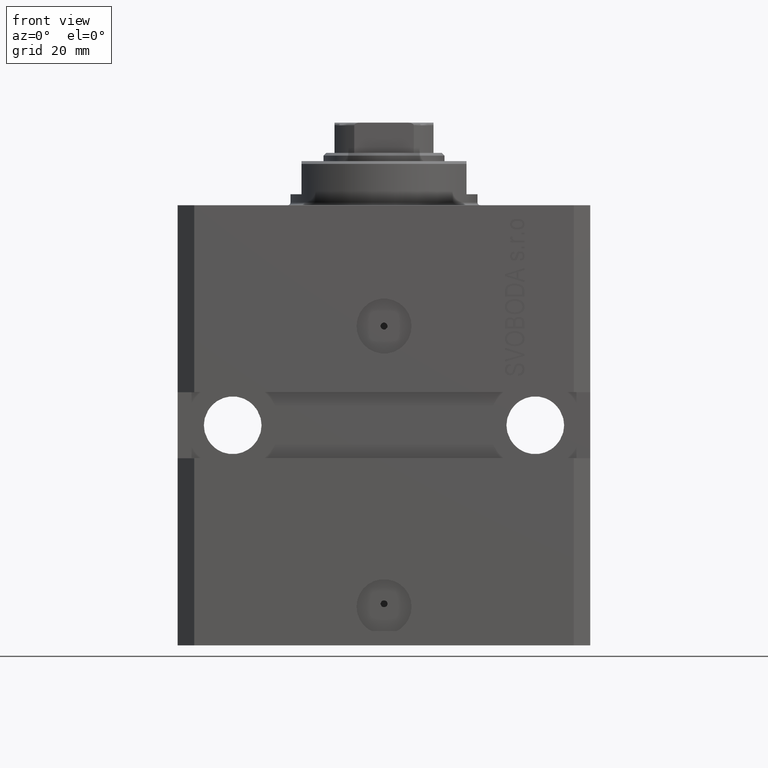
[diagram: clean part render]
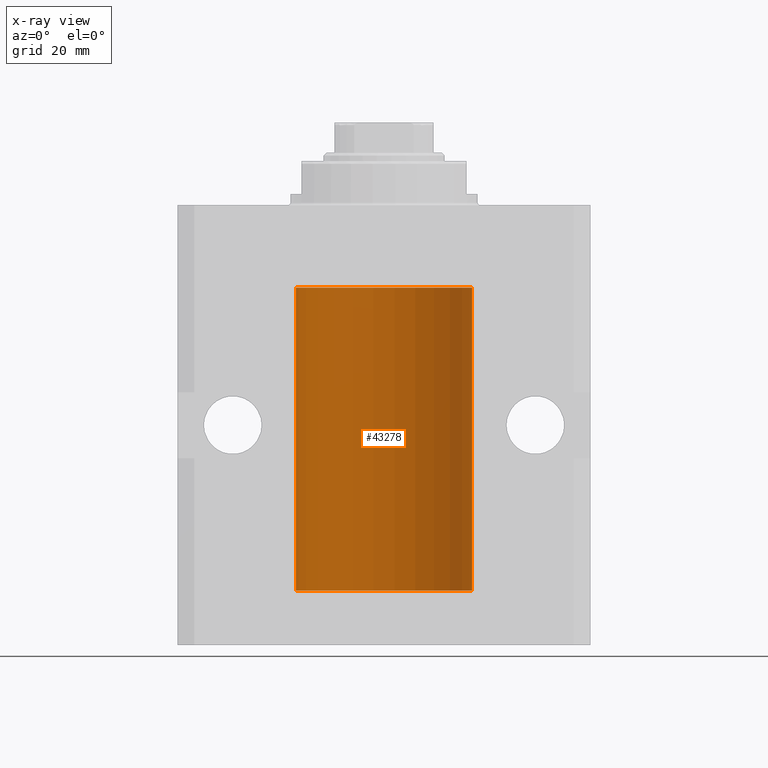
[diagram: x-ray — body ghosted, one internal face saturated and labeled with its STEP entity id]
A machine part, front view, then the same camera in x-ray: the body is ghosted and one INTERNAL B-rep face — a face not visible from any outside direction — is saturated and labeled: STEP entity #43278.
In plain terms, the highlighted cylindrical surface (partial cylindrical patch) has radius 16 mm, axis along (0, 0, 1).
Its self-contained STEP definition (entity closure, byte-faithful):
#1020 = LINE ( 'NONE', #12054, #4899 ) ;
#1330 = CARTESIAN_POINT ( 'NONE',  ( -15.99548640841682712, 0.3843705577988820732, -67.50046628527007897 ) ) ;
#1781 = CARTESIAN_POINT ( 'NONE',  ( -16.00000000000000000, -9.346608026143465119E-15, -67.37500000000000000 ) ) ;
#1784 = VERTEX_POINT ( 'NONE', #25628 ) ;
#2298 = CARTESIAN_POINT ( 'NONE',  ( -16.00000000000000000, 1.643679961284177128E-16, -21.37499999999999645 ) ) ;
#2347 = ORIENTED_EDGE ( 'NONE', *, *, #42246, .T. ) ;
#2467 = CARTESIAN_POINT ( 'NONE',  ( -16.00000000000000000, 1.643679961284177128E-16, -21.37499999999999645 ) ) ;
#2696 = CARTESIAN_POINT ( 'NONE',  ( -15.99934216141748244, 0.1636497843296417787, -21.39126528029306229 ) ) ;
#3070 = CARTESIAN_POINT ( 'NONE',  ( 16.00000000000000000, 0.000000000000000000, -70.09999999999999432 ) ) ;
#3541 = CARTESIAN_POINT ( 'NONE',  ( 15.98778830858070954, 0.6250000000080517815, -67.99999999999916156 ) ) ;
#4091 = CARTESIAN_POINT ( 'NONE',  ( 16.00000000000013145, 3.665532684555111376E-13, -21.37499999999658229 ) ) ;
#4154 = VERTEX_POINT ( 'NONE', #39812 ) ;
#4175 = CARTESIAN_POINT ( 'NONE',  ( 15.99070366873610993, 0.5574063959866685236, -22.32639436837549951 ) ) ;
#4899 = VECTOR ( 'NONE', #35522, 1000.000000000000000 ) ;
#4974 = CARTESIAN_POINT ( 'NONE',  ( 15.99711856062700122, 0.3252985083513915687, -21.44140297987714661 ) ) ;
#5024 = VECTOR ( 'NONE', #30632, 1000.000000000000000 ) ;
#5129 = EDGE_CURVE ( 'NONE', #38978, #9726, #7250, .T. ) ;
#5149 = CARTESIAN_POINT ( 'NONE',  ( -15.98778717651346426, 0.6250289588122136530, -68.08131585687053189 ) ) ;
#5179 = VERTEX_POINT ( 'NONE', #6062 ) ;
#5327 = DIRECTION ( 'NONE',  ( -0.000000000000000000, -0.000000000000000000, 1.000000000000000000 ) ) ;
#5426 = CARTESIAN_POINT ( 'NONE',  ( 16.00000000000013145, 3.665532684555111376E-13, -21.37499999999658229 ) ) ;
#5752 = EDGE_CURVE ( 'NONE', #36478, #12424, #25349, .T. ) ;
#5925 = CARTESIAN_POINT ( 'NONE',  ( 16.00000000000000000, 0.000000000000000000, -15.00000000000000000 ) ) ;
#6062 = CARTESIAN_POINT ( 'NONE',  ( -16.00000000000000000, -9.346608026143465119E-15, -67.37500000000000000 ) ) ;
#6180 = CARTESIAN_POINT ( 'NONE',  ( 0.000000000000000000, 0.000000000000000000, -70.09999999999999432 ) ) ;
#6550 = CARTESIAN_POINT ( 'NONE',  ( 16.00000000000000000, 0.000000000000000000, -70.09999999999999432 ) ) ;
#6927 = CARTESIAN_POINT ( 'NONE',  ( 15.99707608081895138, 0.3151028052310259620, -68.54594170697733091 ) ) ;
#7059 = VERTEX_POINT ( 'NONE', #2298 ) ;
#7250 = B_SPLINE_CURVE_WITH_KNOTS ( 'NONE', 3,
 ( #26583, #22969, #33569, #6927, #16861, #17083, #40358, #3541 ),
 .UNSPECIFIED., .F., .F.,
 ( 4, 2, 2, 4 ),
 ( 1.783888443149829469E-18, 0.0002443331572175257886, 0.0004886663144350497342, 0.0009773326288700682433 ),
 .UNSPECIFIED. ) ;
#7352 = ORIENTED_EDGE ( 'NONE', *, *, #5752, .F. ) ;
#7371 = LINE ( 'NONE', #27674, #24089 ) ;
#7872 = EDGE_CURVE ( 'NONE', #40528, #4154, #23378, .T. ) ;
#7887 = VECTOR ( 'NONE', #20307, 1000.000000000000000 ) ;
#8591 = AXIS2_PLACEMENT_3D ( 'NONE', #6180, #19937, #17411 ) ;
#8879 = CARTESIAN_POINT ( 'NONE',  ( -16.00000000000000000, 1.959434878635765131E-15, -70.09999999999999432 ) ) ;
#9233 = CARTESIAN_POINT ( 'NONE',  ( -16.00000000000013145, 3.685127034031037939E-13, -22.62500000000341771 ) ) ;
#9505 = EDGE_CURVE ( 'NONE', #18520, #10003, #10388, .T. ) ;
#9630 = VECTOR ( 'NONE', #12045, 1000.000000000000000 ) ;
#9726 = VERTEX_POINT ( 'NONE', #11685 ) ;
#10003 = VERTEX_POINT ( 'NONE', #4091 ) ;
#10388 = B_SPLINE_CURVE_WITH_KNOTS ( 'NONE', 3,
 ( #15572, #22123, #39281, #12178, #25724, #4974, #18733, #5426 ),
 .UNSPECIFIED., .F., .F.,
 ( 4, 2, 2, 4 ),
 ( 0.0009773326288699728335, 0.001221554802188567438, 0.001465776975507162259, 0.001954221322144344530 ),
 .UNSPECIFIED. ) ;
#10536 = LINE ( 'NONE', #34231, #5024 ) ;
#10950 = ORIENTED_EDGE ( 'NONE', *, *, #30734, .T. ) ;
#11426 = EDGE_CURVE ( 'NONE', #7059, #4154, #29461, .T. ) ;
#11685 = CARTESIAN_POINT ( 'NONE',  ( 15.98778830858070954, 0.6250000000080517815, -67.99999999999916156 ) ) ;
#12045 = DIRECTION ( 'NONE',  ( -0.000000000000000000, -0.000000000000000000, 1.000000000000000000 ) ) ;
#12054 = CARTESIAN_POINT ( 'NONE',  ( -16.00000000000000000, 1.959434878635765131E-15, -70.09999999999999432 ) ) ;
#12130 = CARTESIAN_POINT ( 'NONE',  ( -15.99711699979840951, 0.3253759916140645525, -68.55856151623176231 ) ) ;
#12178 = CARTESIAN_POINT ( 'NONE',  ( 15.99070695999104252, 0.5461439696926363441, -21.68526802364053552 ) ) ;
#12244 = EDGE_CURVE ( 'NONE', #7059, #1784, #20916, .T. ) ;
#12280 = ORIENTED_EDGE ( 'NONE', *, *, #7872, .T. ) ;
#12376 = CARTESIAN_POINT ( 'NONE',  ( -15.98778717651346071, 0.6250289588122140971, -22.08131585687052478 ) ) ;
#12424 = VERTEX_POINT ( 'NONE', #31906 ) ;
#12836 = CARTESIAN_POINT ( 'NONE',  ( -15.99228023727724413, 0.5003781296993413674, -22.38347829554236057 ) ) ;
#12955 = CARTESIAN_POINT ( 'NONE',  ( 15.98778830858103817, 0.6249999999997223332, -67.91847885046213662 ) ) ;
#13400 = CARTESIAN_POINT ( 'NONE',  ( 15.99228275317786441, 0.5002975944204781644, -67.61642014570176684 ) ) ;
#14782 = CARTESIAN_POINT ( 'NONE',  ( 16.00000000000000000, 6.728408811789801767E-16, -22.62500000000000000 ) ) ;
#14977 = FACE_OUTER_BOUND ( 'NONE', #28264, .T. ) ;
#15001 = CARTESIAN_POINT ( 'NONE',  ( 15.98778830858101685, 0.6250000000001204592, -22.16311639173018833 ) ) ;
#15330 = ORIENTED_EDGE ( 'NONE', *, *, #39635, .T. ) ;
#15523 = CARTESIAN_POINT ( 'NONE',  ( -15.99070653155268040, 0.5573233280232966491, -67.67348148680505915 ) ) ;
#15572 = CARTESIAN_POINT ( 'NONE',  ( 15.98778830858070954, 0.6250000000079481977, -21.99999999999914735 ) ) ;
#15695 = ORIENTED_EDGE ( 'NONE', *, *, #9505, .T. ) ;
#15807 = CARTESIAN_POINT ( 'NONE',  ( 16.00000000000000000, -1.835653844722709729E-15, -68.62500000000000000 ) ) ;
#15988 = CARTESIAN_POINT ( 'NONE',  ( -15.99711699979842017, 0.3253759916140657737, -22.55856151623175521 ) ) ;
#16341 = CARTESIAN_POINT ( 'NONE',  ( 15.99999999999999645, 0.1631343969470158417, -67.37500000000021316 ) ) ;
#16615 = DIRECTION ( 'NONE',  ( 1.000000000000000000, 0.000000000000000000, 0.000000000000000000 ) ) ;
#16861 = CARTESIAN_POINT ( 'NONE',  ( 15.99548458234361448, 0.3844468804816183471, -68.49947786696357355 ) ) ;
#17083 = CARTESIAN_POINT ( 'NONE',  ( 15.99070366873610283, 0.5574063959867601170, -68.32639436837555991 ) ) ;
#17411 = DIRECTION ( 'NONE',  ( 1.000000000000000000, 0.000000000000000000, 0.000000000000000000 ) ) ;
#18157 = CARTESIAN_POINT ( 'NONE',  ( 15.98778830858070954, 0.6250000000079481977, -21.99999999999914735 ) ) ;
#18520 = VERTEX_POINT ( 'NONE', #20214 ) ;
#18686 = CARTESIAN_POINT ( 'NONE',  ( -15.99707730059171240, 0.3150375992092334654, -67.45402333202571299 ) ) ;
#18733 = CARTESIAN_POINT ( 'NONE',  ( 15.99999999999999289, 0.1631343969470015476, -21.37500000000020606 ) ) ;
#19362 = CARTESIAN_POINT ( 'NONE',  ( -16.00000000000013145, 3.685127046438747128E-13, -68.62500000000343903 ) ) ;
#19383 = CARTESIAN_POINT ( 'NONE',  ( -15.99070426498503217, 0.5462220647145618058, -22.31460064614143590 ) ) ;
#19444 = EDGE_CURVE ( 'NONE', #5179, #1784, #1020, .T. ) ;
#19937 = DIRECTION ( 'NONE',  ( 0.000000000000000000, 0.000000000000000000, 1.000000000000000000 ) ) ;
#20130 = CIRCLE ( 'NONE', #8591, 16.00000000000000000 ) ;
#20214 = CARTESIAN_POINT ( 'NONE',  ( 15.98778830858070954, 0.6250000000079481977, -21.99999999999914735 ) ) ;
#20307 = DIRECTION ( 'NONE',  ( -0.000000000000000000, -0.000000000000000000, 1.000000000000000000 ) ) ;
#20447 = CARTESIAN_POINT ( 'NONE',  ( 0.000000000000000000, 0.000000000000000000, -15.00000000000000000 ) ) ;
#20840 = B_SPLINE_CURVE_WITH_KNOTS ( 'NONE', 3,
 ( #14782, #41624, #38700, #38926, #38242, #4175, #15001, #18157 ),
 .UNSPECIFIED., .F., .F.,
 ( 4, 2, 2, 4 ),
 ( 6.538667818360814107E-19, 0.0002443331572174917989, 0.0004886663144349829473, 0.0009773326288699728335 ),
 .UNSPECIFIED. ) ;
#20916 = B_SPLINE_CURVE_WITH_KNOTS ( 'NONE', 3,
 ( #2467, #26596, #2696, #43294, #23427, #29524, #36756, #12376, #36531, #19383, #12836, #15988, #29751, #9233 ),
 .UNSPECIFIED., .F., .F.,
 ( 4, 2, 2, 2, 2, 2, 4 ),
 ( 1.597328219370744179E-19, 0.0002442776652680942405, 0.0004885553305361882643, 0.0009771106610723839011, 0.001221388326340481665, 0.001465665991608579430, 0.001954221322144767369 ),
 .UNSPECIFIED. ) ;
#21019 = ORIENTED_EDGE ( 'NONE', *, *, #12244, .T. ) ;
#21198 = ORIENTED_EDGE ( 'NONE', *, *, #22117, .T. ) ;
#22117 = EDGE_CURVE ( 'NONE', #10003, #40528, #27073, .T. ) ;
#22123 = CARTESIAN_POINT ( 'NONE',  ( 15.98778830858104172, 0.6249999999996183053, -21.91847885046212951 ) ) ;
#22191 = DIRECTION ( 'NONE',  ( 1.000000000000000000, 0.000000000000000000, 0.000000000000000000 ) ) ;
#22969 = CARTESIAN_POINT ( 'NONE',  ( 16.00000000000001066, 0.08261762387943044628, -68.62500000000000000 ) ) ;
#23200 = EDGE_CURVE ( 'NONE', #30545, #38978, #10536, .T. ) ;
#23378 = CIRCLE ( 'NONE', #44288, 16.00000000000000000 ) ;
#23427 = CARTESIAN_POINT ( 'NONE',  ( -15.99548640841683067, 0.3843705577988847377, -21.50046628527008608 ) ) ;
#23552 = CARTESIAN_POINT ( 'NONE',  ( 15.99070695999103542, 0.5461439696927204990, -67.68526802364047512 ) ) ;
#24089 = VECTOR ( 'NONE', #31285, 1000.000000000000000 ) ;
#25340 = CARTESIAN_POINT ( 'NONE',  ( 0.000000000000000000, 0.000000000000000000, -70.09999999999999432 ) ) ;
#25349 = LINE ( 'NONE', #8879, #9630 ) ;
#25484 = EDGE_CURVE ( 'NONE', #30545, #36478, #20130, .T. ) ;
#25628 = CARTESIAN_POINT ( 'NONE',  ( -16.00000000000013145, 3.685127034031037939E-13, -22.62500000000341771 ) ) ;
#25724 = CARTESIAN_POINT ( 'NONE',  ( 15.99228275317787507, 0.5002975944204000047, -21.61642014570181303 ) ) ;
#26583 = CARTESIAN_POINT ( 'NONE',  ( 16.00000000000000000, -1.835653844722709729E-15, -68.62500000000000000 ) ) ;
#26596 = CARTESIAN_POINT ( 'NONE',  ( -16.00000000000000711, 0.08259886010189904093, -21.37500000000000000 ) ) ;
#27073 = LINE ( 'NONE', #6550, #7887 ) ;
#27116 = EDGE_CURVE ( 'NONE', #9726, #36080, #36065, .T. ) ;
#27316 = CARTESIAN_POINT ( 'NONE',  ( 16.00000000000000000, 6.728408811789801767E-16, -22.62500000000000000 ) ) ;
#27674 = CARTESIAN_POINT ( 'NONE',  ( 16.00000000000000000, 0.000000000000000000, -70.09999999999999432 ) ) ;
#27829 = DIRECTION ( 'NONE',  ( -0.000000000000000000, -0.000000000000000000, 1.000000000000000000 ) ) ;
#28264 = EDGE_LOOP ( 'NONE', ( #7352, #29074, #30814, #28474, #42329, #15330, #10950, #15695, #21198, #12280, #43443, #21019, #35409, #2347 ) ) ;
#28474 = ORIENTED_EDGE ( 'NONE', *, *, #5129, .T. ) ;
#28726 = CYLINDRICAL_SURFACE ( 'NONE', #38500, 16.00000000000000000 ) ;
#28947 = CARTESIAN_POINT ( 'NONE',  ( 16.00000000000013145, 3.665532692826917502E-13, -67.37499999999657518 ) ) ;
#29054 = CARTESIAN_POINT ( 'NONE',  ( -15.98779057735153586, 0.6249419637998054888, -67.83670145863507628 ) ) ;
#29074 = ORIENTED_EDGE ( 'NONE', *, *, #25484, .F. ) ;
#29228 = VECTOR ( 'NONE', #5327, 1000.000000000000000 ) ;
#29282 = CARTESIAN_POINT ( 'NONE',  ( -15.99070426498502862, 0.5462220647145645813, -68.31460064614141459 ) ) ;
#29461 = LINE ( 'NONE', #43232, #29228 ) ;
#29524 = CARTESIAN_POINT ( 'NONE',  ( -15.99070653155267685, 0.5573233280232986475, -21.67348148680506625 ) ) ;
#29637 = B_SPLINE_CURVE_WITH_KNOTS ( 'NONE', 3,
 ( #1781, #29731, #39448, #18686, #1330, #15523, #29054, #5149, #36271, #29282, #43048, #12130, #39667, #19362 ),
 .UNSPECIFIED., .F., .F.,
 ( 4, 2, 2, 2, 2, 2, 4 ),
 ( 9.902737362640428303E-19, 0.0002442776652680895785, 0.0004885553305361781812, 0.0009771106610723552782, 0.001221388326340464752, 0.001465665991608574008, 0.001954221322144763465 ),
 .UNSPECIFIED. ) ;
#29731 = CARTESIAN_POINT ( 'NONE',  ( -16.00000000000000711, 0.08259886010189028405, -67.37500000000001421 ) ) ;
#29751 = CARTESIAN_POINT ( 'NONE',  ( -16.00000000000000000, 0.1631714642025800244, -22.62499999999985789 ) ) ;
#30098 = CARTESIAN_POINT ( 'NONE',  ( 16.00000000000013145, 3.665532692826917502E-13, -67.37499999999657518 ) ) ;
#30545 = VERTEX_POINT ( 'NONE', #3070 ) ;
#30632 = DIRECTION ( 'NONE',  ( -0.000000000000000000, -0.000000000000000000, 1.000000000000000000 ) ) ;
#30734 = EDGE_CURVE ( 'NONE', #31173, #18520, #20840, .T. ) ;
#30814 = ORIENTED_EDGE ( 'NONE', *, *, #23200, .T. ) ;
#31173 = VERTEX_POINT ( 'NONE', #27316 ) ;
#31285 = DIRECTION ( 'NONE',  ( -0.000000000000000000, -0.000000000000000000, 1.000000000000000000 ) ) ;
#31906 = CARTESIAN_POINT ( 'NONE',  ( -16.00000000000013145, 3.685127046438747128E-13, -68.62500000000343903 ) ) ;
#32890 = CARTESIAN_POINT ( 'NONE',  ( -16.00000000000000000, 1.959434878635765131E-15, -70.09999999999999432 ) ) ;
#33264 = CARTESIAN_POINT ( 'NONE',  ( 15.99711856062700477, 0.3252985083514284281, -67.44140297987711108 ) ) ;
#33569 = CARTESIAN_POINT ( 'NONE',  ( 15.99934183755190986, 0.1636877470527013101, -68.60872690654070993 ) ) ;
#34231 = CARTESIAN_POINT ( 'NONE',  ( 16.00000000000000000, 0.000000000000000000, -70.09999999999999432 ) ) ;
#35409 = ORIENTED_EDGE ( 'NONE', *, *, #19444, .F. ) ;
#35522 = DIRECTION ( 'NONE',  ( -0.000000000000000000, -0.000000000000000000, 1.000000000000000000 ) ) ;
#36065 = B_SPLINE_CURVE_WITH_KNOTS ( 'NONE', 3,
 ( #43655, #12955, #40719, #23552, #13400, #33264, #16341, #30098 ),
 .UNSPECIFIED., .F., .F.,
 ( 4, 2, 2, 4 ),
 ( 0.0009773326288700682433, 0.001221554802188685399, 0.001465776975507302772, 0.001954221322144537518 ),
 .UNSPECIFIED. ) ;
#36080 = VERTEX_POINT ( 'NONE', #28947 ) ;
#36271 = CARTESIAN_POINT ( 'NONE',  ( -15.98844267028591126, 0.6088369347963314970, -68.16324735024328163 ) ) ;
#36478 = VERTEX_POINT ( 'NONE', #32890 ) ;
#36531 = CARTESIAN_POINT ( 'NONE',  ( -15.98844267028591482, 0.6088369347963316081, -22.16324735024328518 ) ) ;
#36756 = CARTESIAN_POINT ( 'NONE',  ( -15.98779057735153941, 0.6249419637998100407, -21.83670145863507273 ) ) ;
#38242 = CARTESIAN_POINT ( 'NONE',  ( 15.99548458234361092, 0.3844468804815581731, -22.49947786696349894 ) ) ;
#38500 = AXIS2_PLACEMENT_3D ( 'NONE', #25340, #27829, #22191 ) ;
#38700 = CARTESIAN_POINT ( 'NONE',  ( 15.99934183755190986, 0.1636877470526783007, -22.60872690654068151 ) ) ;
#38926 = CARTESIAN_POINT ( 'NONE',  ( 15.99707608081894783, 0.3151028052309810534, -22.54594170697727762 ) ) ;
#38978 = VERTEX_POINT ( 'NONE', #15807 ) ;
#39281 = CARTESIAN_POINT ( 'NONE',  ( 15.98844460043492077, 0.6087869699336542206, -21.83657454967558564 ) ) ;
#39448 = CARTESIAN_POINT ( 'NONE',  ( -15.99934216141748244, 0.1636497843296345067, -67.39126528029308361 ) ) ;
#39635 = EDGE_CURVE ( 'NONE', #36080, #31173, #7371, .T. ) ;
#39667 = CARTESIAN_POINT ( 'NONE',  ( -15.99999999999998934, 0.1631714642025807183, -68.62499999999984368 ) ) ;
#39812 = CARTESIAN_POINT ( 'NONE',  ( -16.00000000000000000, 1.959434878635765131E-15, -15.00000000000000000 ) ) ;
#40358 = CARTESIAN_POINT ( 'NONE',  ( 15.98778830858101685, 0.6250000000002223777, -68.16311639173024162 ) ) ;
#40528 = VERTEX_POINT ( 'NONE', #5925 ) ;
#40719 = CARTESIAN_POINT ( 'NONE',  ( 15.98844460043491367, 0.6087869699337551399, -67.83657454967556077 ) ) ;
#41624 = CARTESIAN_POINT ( 'NONE',  ( 16.00000000000000711, 0.08261762387942241104, -22.62499999999997158 ) ) ;
#42246 = EDGE_CURVE ( 'NONE', #5179, #12424, #29637, .T. ) ;
#42329 = ORIENTED_EDGE ( 'NONE', *, *, #27116, .T. ) ;
#43048 = CARTESIAN_POINT ( 'NONE',  ( -15.99228023727723702, 0.5003781296993395911, -68.38347829554236057 ) ) ;
#43232 = CARTESIAN_POINT ( 'NONE',  ( -16.00000000000000000, 1.959434878635765131E-15, -70.09999999999999432 ) ) ;
#43278 = ADVANCED_FACE ( 'NONE', ( #14977 ), #28726, .F. ) ;
#43294 = CARTESIAN_POINT ( 'NONE',  ( -15.99707730059171240, 0.3150375992092407373, -21.45402333202571654 ) ) ;
#43443 = ORIENTED_EDGE ( 'NONE', *, *, #11426, .F. ) ;
#43655 = CARTESIAN_POINT ( 'NONE',  ( 15.98778830858070954, 0.6250000000080517815, -67.99999999999916156 ) ) ;
#44288 = AXIS2_PLACEMENT_3D ( 'NONE', #20447, #44581, #16615 ) ;
#44581 = DIRECTION ( 'NONE',  ( 0.000000000000000000, 0.000000000000000000, 1.000000000000000000 ) ) ;